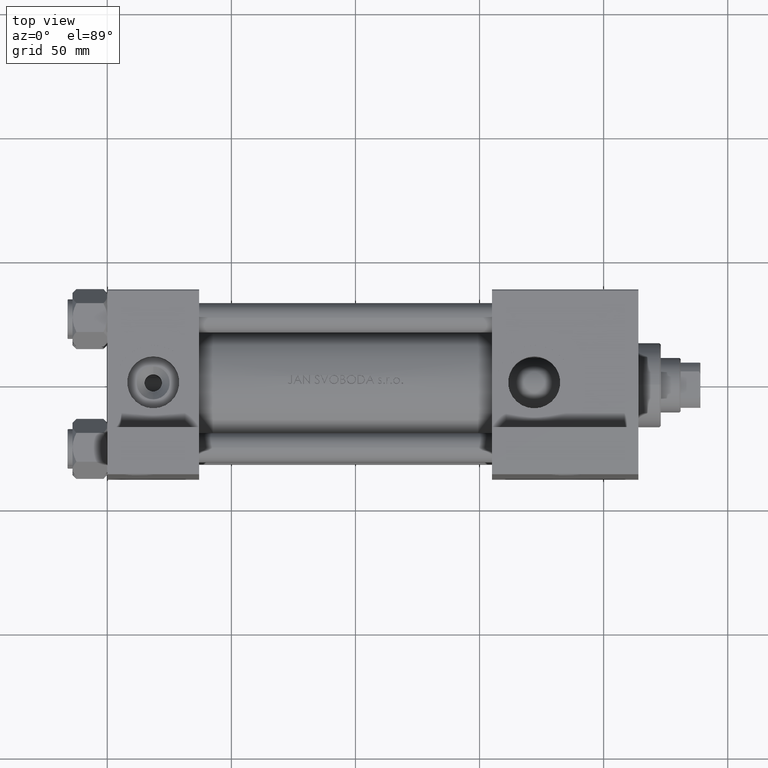
[diagram: clean part render]
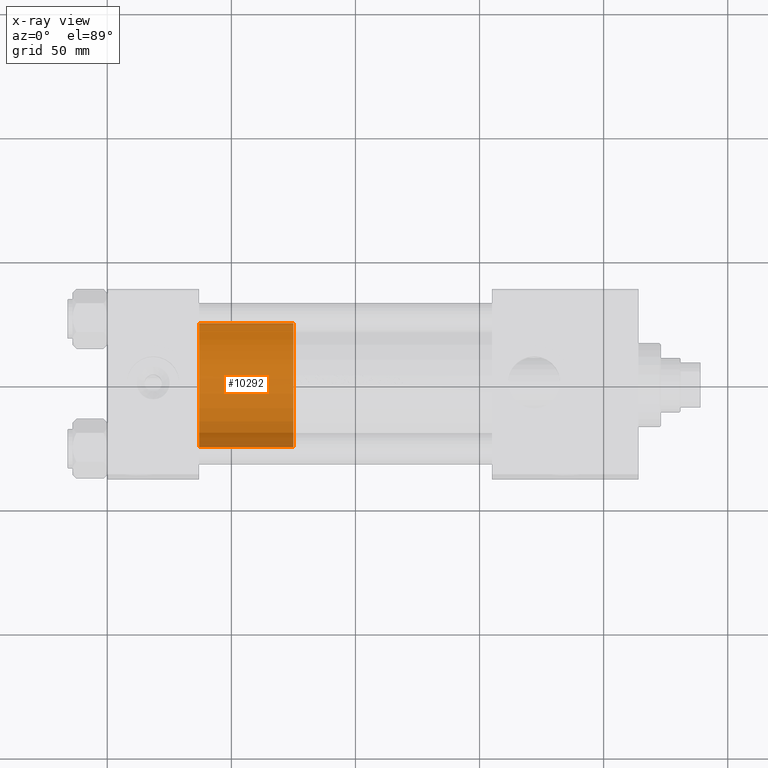
[diagram: x-ray — body ghosted, one internal face saturated and labeled with its STEP entity id]
A machine part, top view, then the same camera in x-ray: the body is ghosted and one INTERNAL B-rep face — a face not visible from any outside direction — is saturated and labeled: STEP entity #10292.
In plain terms, the highlighted cylindrical surface (partial cylindrical patch) has radius 25 mm, axis along (-1, 0, 0).
Its self-contained STEP definition (entity closure, byte-faithful):
#567 = DIRECTION ( 'NONE',  ( -0.000000000000000000, -0.000000000000000000, -1.000000000000000000 ) ) ;
#5039 = CARTESIAN_POINT ( 'NONE',  ( -25.00000000000000000, 0.000000000000000000, 0.000000000000000000 ) ) ;
#6211 = VECTOR ( 'NONE', #567, 1000.000000000000000 ) ;
#6298 = DIRECTION ( 'NONE',  ( 1.000000000000000000, 0.000000000000000000, 0.000000000000000000 ) ) ;
#7110 = DIRECTION ( 'NONE',  ( -0.000000000000000000, -0.000000000000000000, -1.000000000000000000 ) ) ;
#8571 = AXIS2_PLACEMENT_3D ( 'NONE', #23820, #27293, #16337 ) ;
#8627 = EDGE_LOOP ( 'NONE', ( #36114, #14107, #36915, #48790 ) ) ;
#9317 = AXIS2_PLACEMENT_3D ( 'NONE', #13288, #9547, #6298 ) ;
#9547 = DIRECTION ( 'NONE',  ( 0.000000000000000000, 0.000000000000000000, 1.000000000000000000 ) ) ;
#10094 = CYLINDRICAL_SURFACE ( 'NONE', #45102, 25.00000000000000000 ) ;
#10292 = ADVANCED_FACE ( 'NONE', ( #41232 ), #10094, .T. ) ;
#10612 = EDGE_CURVE ( 'NONE', #33944, #34404, #49198, .T. ) ;
#12044 = CARTESIAN_POINT ( 'NONE',  ( 25.00000000000000000, 3.061616997868383043E-15, 38.00000000000000000 ) ) ;
#13288 = CARTESIAN_POINT ( 'NONE',  ( 0.000000000000000000, 0.000000000000000000, 38.00000000000000000 ) ) ;
#14107 = ORIENTED_EDGE ( 'NONE', *, *, #40135, .T. ) ;
#16337 = DIRECTION ( 'NONE',  ( 1.000000000000000000, 0.000000000000000000, 0.000000000000000000 ) ) ;
#19978 = CARTESIAN_POINT ( 'NONE',  ( 25.00000000000000000, 3.061616997868383043E-15, 38.00000000000000000 ) ) ;
#21748 = EDGE_CURVE ( 'NONE', #22418, #44140, #22864, .T. ) ;
#21795 = CARTESIAN_POINT ( 'NONE',  ( 0.000000000000000000, 0.000000000000000000, 38.00000000000000000 ) ) ;
#22418 = VERTEX_POINT ( 'NONE', #24610 ) ;
#22864 = CIRCLE ( 'NONE', #8571, 25.00000000000000000 ) ;
#23082 = EDGE_CURVE ( 'NONE', #34404, #44140, #42405, .T. ) ;
#23820 = CARTESIAN_POINT ( 'NONE',  ( 0.000000000000000000, 0.000000000000000000, 0.000000000000000000 ) ) ;
#24610 = CARTESIAN_POINT ( 'NONE',  ( 25.00000000000000000, 3.061616997868383043E-15, 0.000000000000000000 ) ) ;
#25746 = VECTOR ( 'NONE', #42429, 1000.000000000000000 ) ;
#25763 = DIRECTION ( 'NONE',  ( -1.000000000000000000, 0.000000000000000000, 0.000000000000000000 ) ) ;
#27293 = DIRECTION ( 'NONE',  ( 0.000000000000000000, 0.000000000000000000, 1.000000000000000000 ) ) ;
#32336 = CARTESIAN_POINT ( 'NONE',  ( -25.00000000000000000, 0.000000000000000000, 38.00000000000000000 ) ) ;
#33944 = VERTEX_POINT ( 'NONE', #19978 ) ;
#34404 = VERTEX_POINT ( 'NONE', #35465 ) ;
#35465 = CARTESIAN_POINT ( 'NONE',  ( -25.00000000000000000, 0.000000000000000000, 38.00000000000000000 ) ) ;
#36114 = ORIENTED_EDGE ( 'NONE', *, *, #10612, .F. ) ;
#36915 = ORIENTED_EDGE ( 'NONE', *, *, #21748, .T. ) ;
#38681 = LINE ( 'NONE', #12044, #25746 ) ;
#40135 = EDGE_CURVE ( 'NONE', #33944, #22418, #38681, .T. ) ;
#41232 = FACE_OUTER_BOUND ( 'NONE', #8627, .T. ) ;
#42405 = LINE ( 'NONE', #32336, #6211 ) ;
#42429 = DIRECTION ( 'NONE',  ( -0.000000000000000000, -0.000000000000000000, -1.000000000000000000 ) ) ;
#44140 = VERTEX_POINT ( 'NONE', #5039 ) ;
#45102 = AXIS2_PLACEMENT_3D ( 'NONE', #21795, #7110, #25763 ) ;
#48790 = ORIENTED_EDGE ( 'NONE', *, *, #23082, .F. ) ;
#49198 = CIRCLE ( 'NONE', #9317, 25.00000000000000000 ) ;